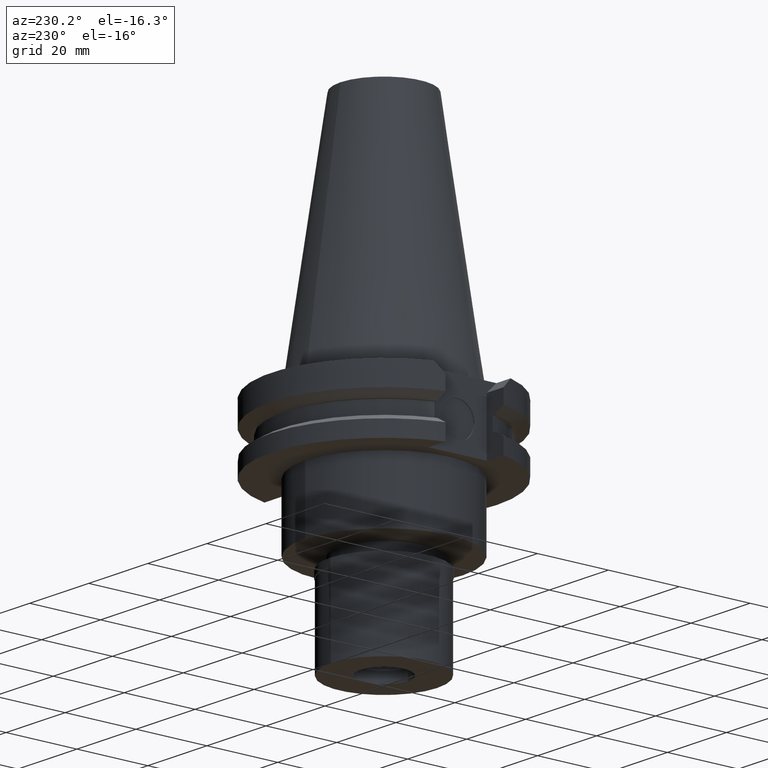
[diagram: clean part render]
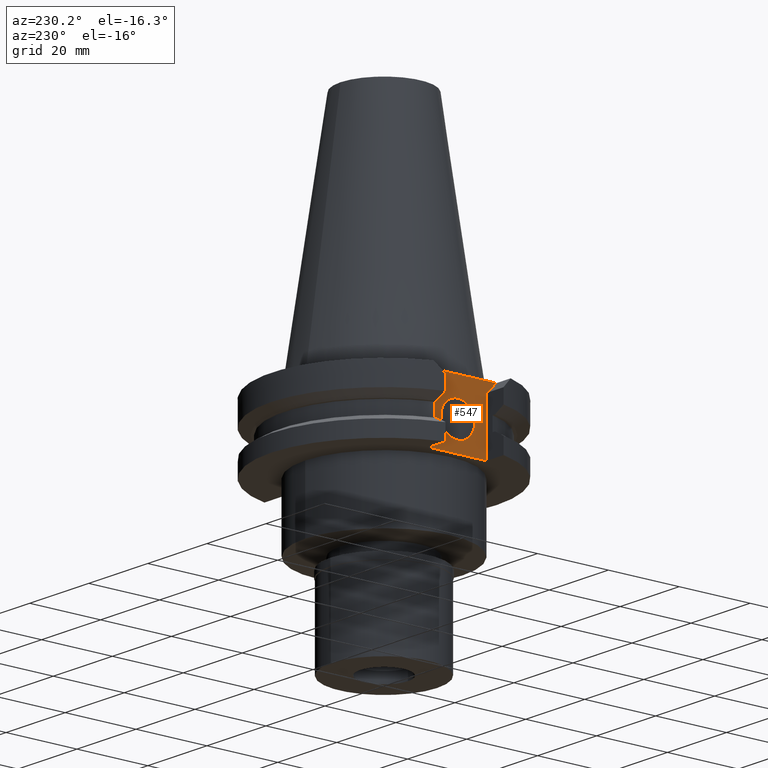
[diagram: same view with one face highlighted and labeled with its STEP entity id]
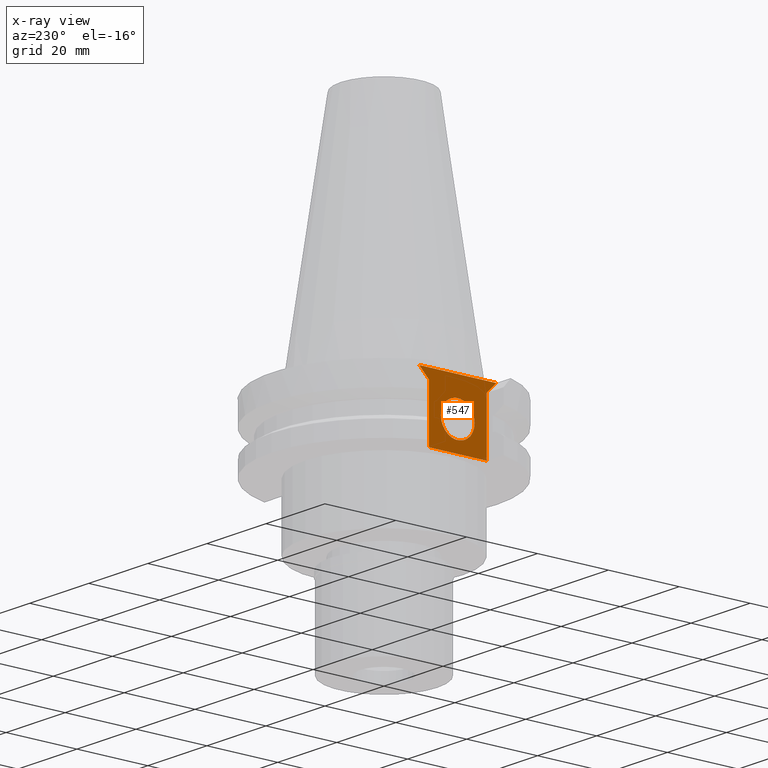
[diagram: x-ray of the same camera — body ghosted, the highlighted face saturated]
A machine part, auxiliary view. The second image highlights one B-rep face of the part: STEP entity #547.
The next image is the same camera in x-ray: the body ghosted, the highlighted face saturated — about 0% of this face is hidden behind the body in this view.
In plain terms, the highlighted planar face has unit normal (1, 0, 0).
Its self-contained STEP definition (entity closure, byte-faithful):
#1 = DIRECTION ( 'NONE',  ( -1.000000000000000000, 0.0000000000000000000, 0.0000000000000000000 ) ) ;
#7 = CARTESIAN_POINT ( 'NONE',  ( -24.98000000000000043, -8.189999999999999503, -19.05000000000000071 ) ) ;
#16 = FACE_BOUND ( 'NONE', #2681, .T. ) ;
#35 = DIRECTION ( 'NONE',  ( 0.0000000000000000000, 1.000000000000000000, 0.0000000000000000000 ) ) ;
#36 = ORIENTED_EDGE ( 'NONE', *, *, #1512, .T. ) ;
#48 = ORIENTED_EDGE ( 'NONE', *, *, #812, .F. ) ;
#104 = CARTESIAN_POINT ( 'NONE',  ( -24.98000000000000043, 0.0000000000000000000, -11.18000000000000149 ) ) ;
#110 = CARTESIAN_POINT ( 'NONE',  ( -24.98000000000000043, -8.189999999999999503, -3.700000000000000178 ) ) ;
#161 = ORIENTED_EDGE ( 'NONE', *, *, #493, .T. ) ;
#241 = PLANE ( 'NONE',  #790 ) ;
#327 = DIRECTION ( 'NONE',  ( 0.0000000000000000000, 0.7071067811865474617, -0.7071067811865474617 ) ) ;
#373 = CARTESIAN_POINT ( 'NONE',  ( -24.98000000000000043, -8.189999999999999503, -19.05000000000000071 ) ) ;
#400 = VECTOR ( 'NONE', #2456, 1000.000000000000000 ) ;
#493 = EDGE_CURVE ( 'NONE', #3071, #3119, #668, .T. ) ;
#500 = DIRECTION ( 'NONE',  ( 0.0000000000000000000, 0.7071067811865474617, 0.7071067811865474617 ) ) ;
#530 = CARTESIAN_POINT ( 'NONE',  ( -24.98000000000000043, 8.189999999999999503, -3.700000000000000178 ) ) ;
#547 = ADVANCED_FACE ( 'NONE', ( #953, #16 ), #241, .F. ) ;
#570 = EDGE_CURVE ( 'NONE', #3064, #2576, #1388, .T. ) ;
#581 = LINE ( 'NONE', #373, #400 ) ;
#596 = EDGE_LOOP ( 'NONE', ( #36, #1361, #1039, #696, #1604, #161 ) ) ;
#617 = EDGE_CURVE ( 'NONE', #2199, #728, #2656, .T. ) ;
#646 = CIRCLE ( 'NONE', #1641, 4.762500000000000178 ) ;
#668 = LINE ( 'NONE', #3076, #940 ) ;
#696 = ORIENTED_EDGE ( 'NONE', *, *, #617, .F. ) ;
#728 = VERTEX_POINT ( 'NONE', #1049 ) ;
#753 = CARTESIAN_POINT ( 'NONE',  ( -24.98000000000000043, -4.762500000000000178, -11.18000000000000149 ) ) ;
#790 = AXIS2_PLACEMENT_3D ( 'NONE', #2110, #2874, #35 ) ;
#812 = EDGE_CURVE ( 'NONE', #2576, #3064, #646, .T. ) ;
#832 = VECTOR ( 'NONE', #327, 1000.000000000000114 ) ;
#940 = VECTOR ( 'NONE', #1816, 1000.000000000000000 ) ;
#953 = FACE_OUTER_BOUND ( 'NONE', #596, .T. ) ;
#1039 = ORIENTED_EDGE ( 'NONE', *, *, #1403, .F. ) ;
#1049 = CARTESIAN_POINT ( 'NONE',  ( -24.98000000000000043, 10.89000000000000057, -1.000000000000000000 ) ) ;
#1067 = DIRECTION ( 'NONE',  ( 0.0000000000000000000, 1.000000000000000000, 0.0000000000000000000 ) ) ;
#1152 = AXIS2_PLACEMENT_3D ( 'NONE', #1469, #1, #1711 ) ;
#1311 = DIRECTION ( 'NONE',  ( 0.0000000000000000000, -1.000000000000000000, 0.0000000000000000000 ) ) ;
#1361 = ORIENTED_EDGE ( 'NONE', *, *, #2299, .F. ) ;
#1388 = CIRCLE ( 'NONE', #1152, 4.762500000000000178 ) ;
#1403 = EDGE_CURVE ( 'NONE', #728, #1831, #2926, .T. ) ;
#1407 = ORIENTED_EDGE ( 'NONE', *, *, #570, .F. ) ;
#1429 = CARTESIAN_POINT ( 'NONE',  ( -24.98000000000000043, 8.189999999999999503, -19.05000000000000071 ) ) ;
#1469 = CARTESIAN_POINT ( 'NONE',  ( -24.98000000000000043, 0.0000000000000000000, -11.18000000000000149 ) ) ;
#1512 = EDGE_CURVE ( 'NONE', #3119, #1617, #581, .T. ) ;
#1556 = VECTOR ( 'NONE', #500, 1000.000000000000114 ) ;
#1604 = ORIENTED_EDGE ( 'NONE', *, *, #2118, .T. ) ;
#1617 = VERTEX_POINT ( 'NONE', #110 ) ;
#1641 = AXIS2_PLACEMENT_3D ( 'NONE', #104, #2265, #1067 ) ;
#1711 = DIRECTION ( 'NONE',  ( 0.0000000000000000000, -1.000000000000000000, 0.0000000000000000000 ) ) ;
#1750 = LINE ( 'NONE', #2932, #2622 ) ;
#1816 = DIRECTION ( 'NONE',  ( 0.0000000000000000000, -1.000000000000000000, 0.0000000000000000000 ) ) ;
#1831 = VERTEX_POINT ( 'NONE', #2560 ) ;
#2110 = CARTESIAN_POINT ( 'NONE',  ( -24.98000000000000043, 0.0000000000000000000, 0.0000000000000000000 ) ) ;
#2118 = EDGE_CURVE ( 'NONE', #2199, #3071, #1750, .T. ) ;
#2199 = VERTEX_POINT ( 'NONE', #530 ) ;
#2241 = VECTOR ( 'NONE', #1311, 1000.000000000000000 ) ;
#2252 = LINE ( 'NONE', #2470, #832 ) ;
#2265 = DIRECTION ( 'NONE',  ( -1.000000000000000000, 0.0000000000000000000, 0.0000000000000000000 ) ) ;
#2299 = EDGE_CURVE ( 'NONE', #1831, #1617, #2252, .T. ) ;
#2456 = DIRECTION ( 'NONE',  ( 0.0000000000000000000, 0.0000000000000000000, 1.000000000000000000 ) ) ;
#2470 = CARTESIAN_POINT ( 'NONE',  ( -24.98000000000000043, -10.89000000000000057, -1.000000000000000000 ) ) ;
#2481 = CARTESIAN_POINT ( 'NONE',  ( -24.98000000000000043, 10.89000000000000057, -1.000000000000000000 ) ) ;
#2560 = CARTESIAN_POINT ( 'NONE',  ( -24.98000000000000043, -10.89000000000000057, -1.000000000000000000 ) ) ;
#2576 = VERTEX_POINT ( 'NONE', #2859 ) ;
#2607 = CARTESIAN_POINT ( 'NONE',  ( -24.98000000000000043, 8.189999999999999503, -3.700000000000000178 ) ) ;
#2622 = VECTOR ( 'NONE', #2659, 1000.000000000000000 ) ;
#2656 = LINE ( 'NONE', #2607, #1556 ) ;
#2659 = DIRECTION ( 'NONE',  ( 0.0000000000000000000, 0.0000000000000000000, -1.000000000000000000 ) ) ;
#2681 = EDGE_LOOP ( 'NONE', ( #1407, #48 ) ) ;
#2859 = CARTESIAN_POINT ( 'NONE',  ( -24.98000000000000043, 4.762500000000000178, -11.18000000000000149 ) ) ;
#2874 = DIRECTION ( 'NONE',  ( 1.000000000000000000, 0.0000000000000000000, 0.0000000000000000000 ) ) ;
#2926 = LINE ( 'NONE', #2481, #2241 ) ;
#2932 = CARTESIAN_POINT ( 'NONE',  ( -24.98000000000000043, 8.189999999999999503, -3.700000000000000178 ) ) ;
#3064 = VERTEX_POINT ( 'NONE', #753 ) ;
#3071 = VERTEX_POINT ( 'NONE', #1429 ) ;
#3076 = CARTESIAN_POINT ( 'NONE',  ( -24.98000000000000043, 8.189999999999999503, -19.05000000000000071 ) ) ;
#3119 = VERTEX_POINT ( 'NONE', #7 ) ;